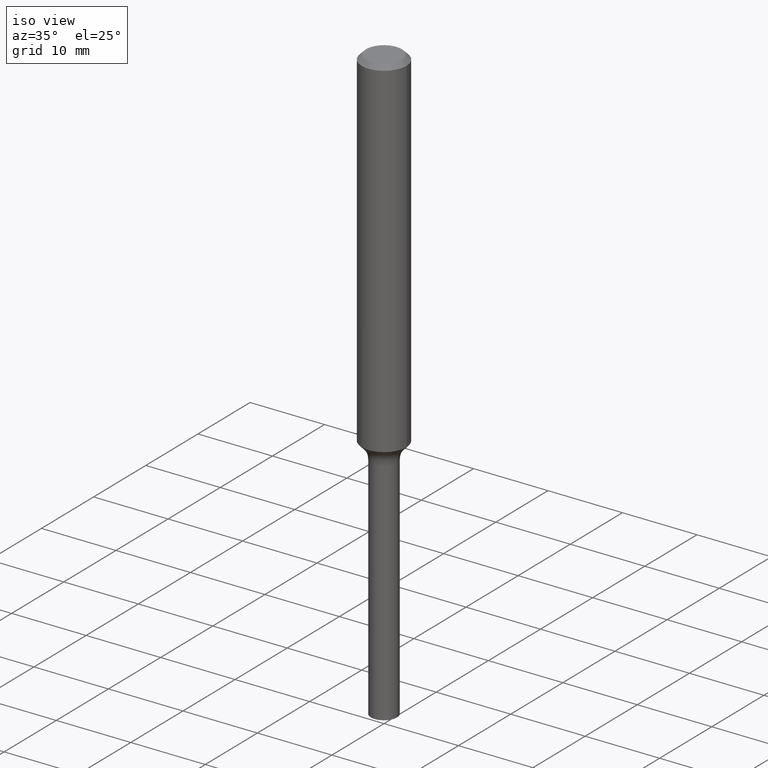
[diagram: clean part render]
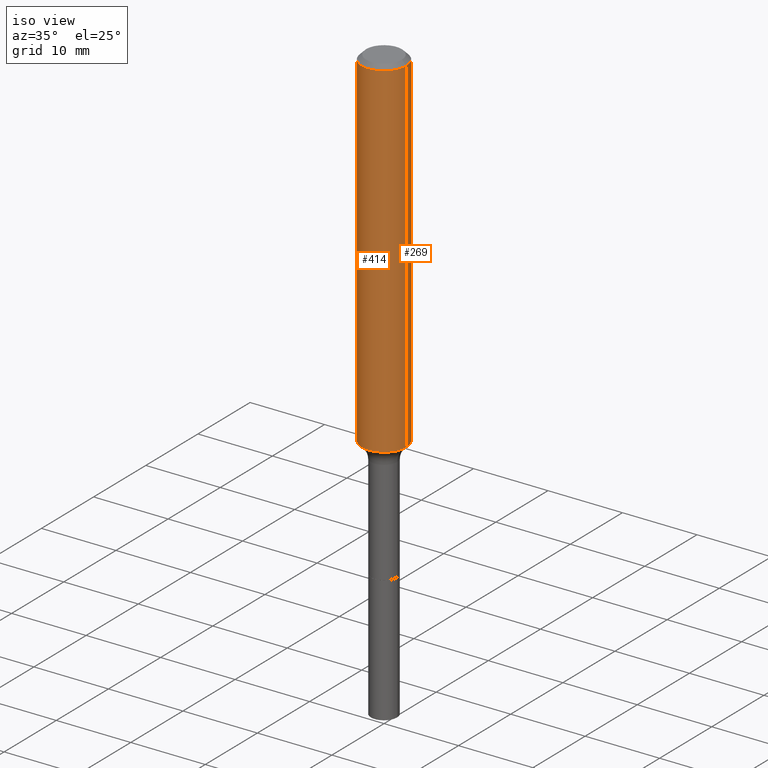
[diagram: same view with one multi-face feature highlighted, each face labeled with its STEP entity id]
A machine part, iso view. The highlighted faces form ONE feature: a constant-radius fillet chain: 2 tangent blend faces with common blend radius 2.9997 mm. The faces share edges in the B-rep.
Their STEP definitions:
[1] entity #269 (Cylinder):
#14 = EDGE_CURVE ( 'NONE', #243, #37, #49, .T. ) ;
#33 = VECTOR ( 'NONE', #196, 39.37007874015748143 ) ;
#37 = VERTEX_POINT ( 'NONE', #145 ) ;
#41 = EDGE_LOOP ( 'NONE', ( #236, #256, #457, #357 ) ) ;
#42 = CARTESIAN_POINT ( 'NONE',  ( 4.512688689899725989E-29, -6.442923462749986025E-15, -1.845326621417590074 ) ) ;
#49 = LINE ( 'NONE', #225, #332 ) ;
#60 = DIRECTION ( 'NONE',  ( -2.445468806185136877E-29, 3.491481338843145188E-15, 1.000000000000000000 ) ) ;
#76 = AXIS2_PLACEMENT_3D ( 'NONE', #42, #400, #511 ) ;
#81 = CARTESIAN_POINT ( 'NONE',  ( 0.1181000000000002187, -7.267611354984735865E-15, -1.845326621417590074 ) ) ;
#111 = EDGE_CURVE ( 'NONE', #342, #206, #494, .T. ) ;
#115 = CIRCLE ( 'NONE', #190, 0.1180999999999999966 ) ;
#142 = DIRECTION ( 'NONE',  ( 1.000000000000000000, -6.982962677686266711E-15, 4.876176775795935793E-29 ) ) ;
#145 = CARTESIAN_POINT ( 'NONE',  ( 0.1180999999999999966, -9.071566814582237199E-16, -0.02362000000000014435 ) ) ;
#188 = EDGE_CURVE ( 'NONE', #243, #342, #308, .T. ) ;
#190 = AXIS2_PLACEMENT_3D ( 'NONE', #368, #330, #217 ) ;
#196 = DIRECTION ( 'NONE',  ( -2.445468806185136877E-29, 3.491481338843145188E-15, 1.000000000000000000 ) ) ;
#206 = VERTEX_POINT ( 'NONE', #389 ) ;
#217 = DIRECTION ( 'NONE',  ( 1.000000000000000000, -6.982962677686266711E-15, 0.000000000000000000 ) ) ;
#225 = CARTESIAN_POINT ( 'NONE',  ( 0.1181000000000001077, -8.246878922347488542E-16, 5.758764772215005345E-30 ) ) ;
#236 = ORIENTED_EDGE ( 'NONE', *, *, #188, .T. ) ;
#243 = VERTEX_POINT ( 'NONE', #81 ) ;
#256 = ORIENTED_EDGE ( 'NONE', *, *, #111, .T. ) ;
#265 = DIRECTION ( 'NONE',  ( -2.445468806185136597E-29, 3.491481338843145583E-15, 1.000000000000000000 ) ) ;
#269 = ADVANCED_FACE ( 'NONE', ( #415 ), #409, .T. ) ;
#304 = CARTESIAN_POINT ( 'NONE',  ( -0.1181000000000002187, -5.603772491817307039E-15, -1.845326621417590074 ) ) ;
#308 = CIRCLE ( 'NONE', #76, 0.1181000000000002187 ) ;
#313 = EDGE_CURVE ( 'NONE', #37, #206, #115, .T. ) ;
#321 = CARTESIAN_POINT ( 'NONE',  ( -0.1181000000000001077, 8.391509709326790846E-16, -5.809262341591049389E-30 ) ) ;
#330 = DIRECTION ( 'NONE',  ( -2.445468806185136597E-29, 3.491481338843145583E-15, 1.000000000000000000 ) ) ;
#332 = VECTOR ( 'NONE', #60, 39.37007874015748143 ) ;
#342 = VERTEX_POINT ( 'NONE', #304 ) ;
#345 = AXIS2_PLACEMENT_3D ( 'NONE', #450, #265, #142 ) ;
#357 = ORIENTED_EDGE ( 'NONE', *, *, #14, .F. ) ;
#368 = CARTESIAN_POINT ( 'NONE',  ( 5.776197320209328408E-31, -8.246878922347560526E-17, -0.02362000000000014435 ) ) ;
#389 = CARTESIAN_POINT ( 'NONE',  ( -0.1180999999999999966, -2.423545155054050966E-15, -0.02362000000000014435 ) ) ;
#400 = DIRECTION ( 'NONE',  ( -2.445468806185136597E-29, 3.491481338843145583E-15, 1.000000000000000000 ) ) ;
#409 = CYLINDRICAL_SURFACE ( 'NONE', #345, 0.1181000000000001077 ) ;
#415 = FACE_OUTER_BOUND ( 'NONE', #41, .T. ) ;
#450 = CARTESIAN_POINT ( 'NONE',  ( 0.000000000000000000, 0.000000000000000000, 0.000000000000000000 ) ) ;
#457 = ORIENTED_EDGE ( 'NONE', *, *, #313, .F. ) ;
#494 = LINE ( 'NONE', #321, #33 ) ;
#511 = DIRECTION ( 'NONE',  ( 1.000000000000000000, -6.982962677686267499E-15, 0.000000000000000000 ) ) ;
[2] entity #414 (Cylinder):
#14 = EDGE_CURVE ( 'NONE', #243, #37, #49, .T. ) ;
#22 = CYLINDRICAL_SURFACE ( 'NONE', #153, 0.1181000000000001077 ) ;
#33 = VECTOR ( 'NONE', #196, 39.37007874015748143 ) ;
#37 = VERTEX_POINT ( 'NONE', #145 ) ;
#44 = DIRECTION ( 'NONE',  ( -2.445468806185136597E-29, 3.491481338843145583E-15, 1.000000000000000000 ) ) ;
#49 = LINE ( 'NONE', #225, #332 ) ;
#52 = EDGE_CURVE ( 'NONE', #206, #37, #228, .T. ) ;
#60 = DIRECTION ( 'NONE',  ( -2.445468806185136877E-29, 3.491481338843145188E-15, 1.000000000000000000 ) ) ;
#81 = CARTESIAN_POINT ( 'NONE',  ( 0.1181000000000002187, -7.267611354984735865E-15, -1.845326621417590074 ) ) ;
#101 = AXIS2_PLACEMENT_3D ( 'NONE', #259, #453, #218 ) ;
#111 = EDGE_CURVE ( 'NONE', #342, #206, #494, .T. ) ;
#145 = CARTESIAN_POINT ( 'NONE',  ( 0.1180999999999999966, -9.071566814582237199E-16, -0.02362000000000014435 ) ) ;
#152 = CIRCLE ( 'NONE', #431, 0.1181000000000002187 ) ;
#153 = AXIS2_PLACEMENT_3D ( 'NONE', #315, #226, #344 ) ;
#166 = EDGE_LOOP ( 'NONE', ( #326, #439, #246, #436 ) ) ;
#193 = EDGE_CURVE ( 'NONE', #342, #243, #152, .T. ) ;
#196 = DIRECTION ( 'NONE',  ( -2.445468806185136877E-29, 3.491481338843145188E-15, 1.000000000000000000 ) ) ;
#206 = VERTEX_POINT ( 'NONE', #389 ) ;
#212 = DIRECTION ( 'NONE',  ( 1.000000000000000000, -6.982962677686267499E-15, 0.000000000000000000 ) ) ;
#218 = DIRECTION ( 'NONE',  ( 1.000000000000000000, -6.982962677686266711E-15, 0.000000000000000000 ) ) ;
#225 = CARTESIAN_POINT ( 'NONE',  ( 0.1181000000000001077, -8.246878922347488542E-16, 5.758764772215005345E-30 ) ) ;
#226 = DIRECTION ( 'NONE',  ( -2.445468806185136597E-29, 3.491481338843145583E-15, 1.000000000000000000 ) ) ;
#228 = CIRCLE ( 'NONE', #101, 0.1180999999999999966 ) ;
#240 = CARTESIAN_POINT ( 'NONE',  ( 4.512688689899725989E-29, -6.442923462749986025E-15, -1.845326621417590074 ) ) ;
#243 = VERTEX_POINT ( 'NONE', #81 ) ;
#246 = ORIENTED_EDGE ( 'NONE', *, *, #14, .T. ) ;
#259 = CARTESIAN_POINT ( 'NONE',  ( 5.776197320209328408E-31, -8.246878922347560526E-17, -0.02362000000000014435 ) ) ;
#304 = CARTESIAN_POINT ( 'NONE',  ( -0.1181000000000002187, -5.603772491817307039E-15, -1.845326621417590074 ) ) ;
#310 = FACE_OUTER_BOUND ( 'NONE', #166, .T. ) ;
#315 = CARTESIAN_POINT ( 'NONE',  ( 0.000000000000000000, 0.000000000000000000, 0.000000000000000000 ) ) ;
#321 = CARTESIAN_POINT ( 'NONE',  ( -0.1181000000000001077, 8.391509709326790846E-16, -5.809262341591049389E-30 ) ) ;
#326 = ORIENTED_EDGE ( 'NONE', *, *, #111, .F. ) ;
#332 = VECTOR ( 'NONE', #60, 39.37007874015748143 ) ;
#342 = VERTEX_POINT ( 'NONE', #304 ) ;
#344 = DIRECTION ( 'NONE',  ( 1.000000000000000000, -6.982962677686266711E-15, 4.876176775795935793E-29 ) ) ;
#389 = CARTESIAN_POINT ( 'NONE',  ( -0.1180999999999999966, -2.423545155054050966E-15, -0.02362000000000014435 ) ) ;
#414 = ADVANCED_FACE ( 'NONE', ( #310 ), #22, .T. ) ;
#431 = AXIS2_PLACEMENT_3D ( 'NONE', #240, #44, #212 ) ;
#436 = ORIENTED_EDGE ( 'NONE', *, *, #52, .F. ) ;
#439 = ORIENTED_EDGE ( 'NONE', *, *, #193, .T. ) ;
#453 = DIRECTION ( 'NONE',  ( -2.445468806185136597E-29, 3.491481338843145583E-15, 1.000000000000000000 ) ) ;
#494 = LINE ( 'NONE', #321, #33 ) ;